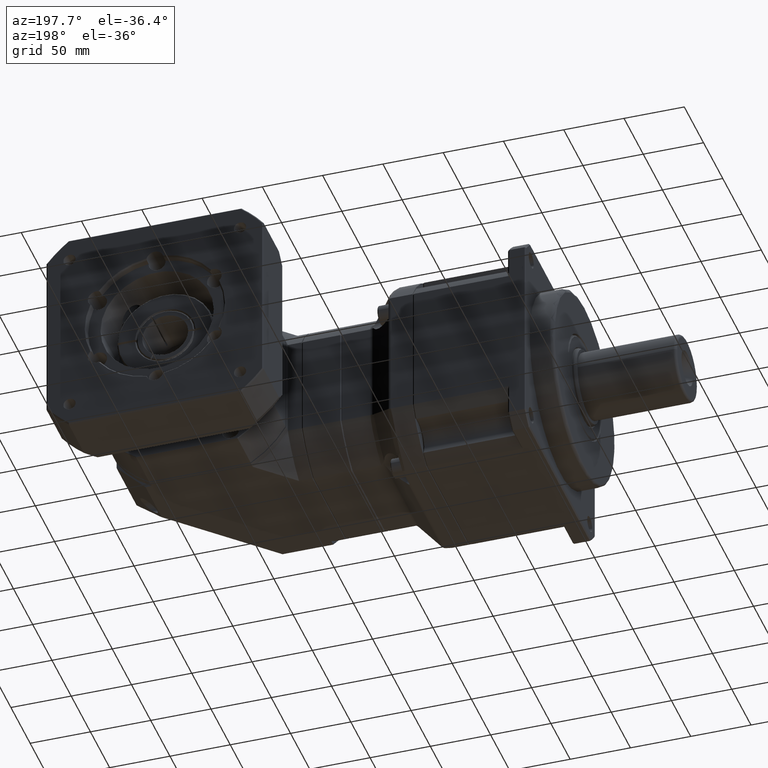
[diagram: clean part render]
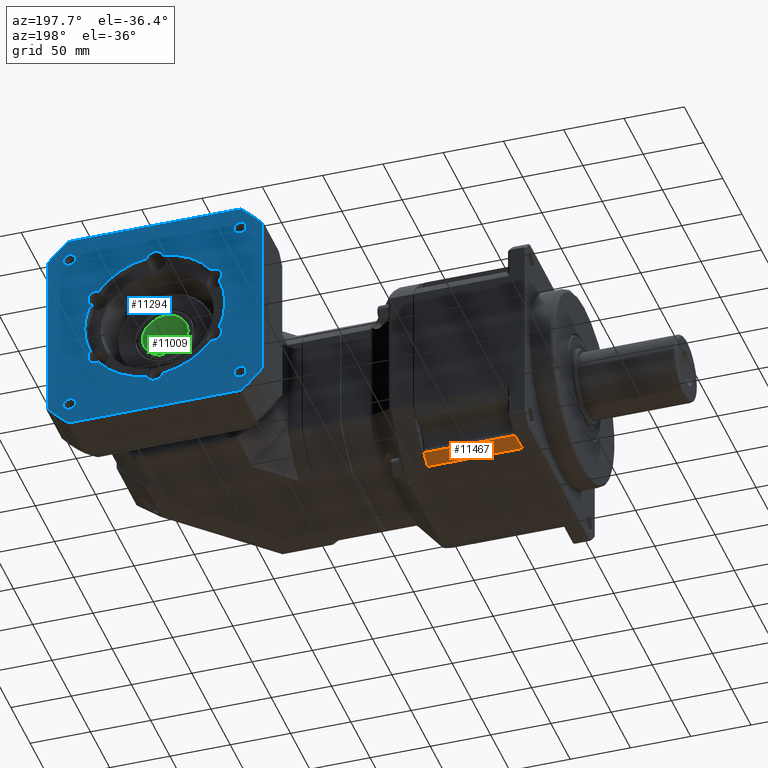
[diagram: same view with three faces highlighted in distinct colors, each labeled with its STEP entity id]
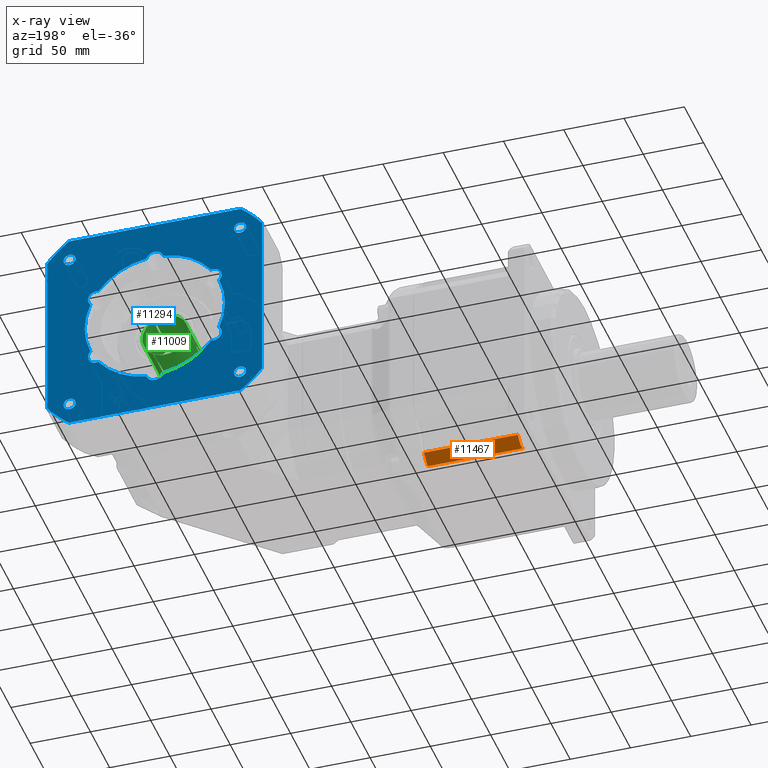
[diagram: x-ray of the same camera — body ghosted, the three highlighted faces saturated]
A machine part, auxiliary view with three faces highlighted in distinct colors.
The next image is the same camera in x-ray (body ghosted, the three faces saturated) — at least one of them is partly hidden behind the body in this view.
Their STEP definitions:

[orange] entity #11467 — the highlighted cylindrical surface (partial cylindrical patch) has radius 105 mm, axis along (-1, 0, -0).
#25=ELLIPSE('',#12682,148.492424049176,105.);
#951=LINE('',#19134,#1501);
#952=LINE('',#19138,#1502);
#1501=VECTOR('',#15325,79.);
#1502=VECTOR('',#15330,78.);
#2884=FACE_OUTER_BOUND('',#3890,.T.);
#3890=EDGE_LOOP('',(#9174,#9175,#9176,#9177,#9178));
#4688=CIRCLE('',#12677,105.);
#4697=CIRCLE('',#12706,105.);
#5505=VERTEX_POINT('',#19046);
#5509=VERTEX_POINT('',#19054);
#5511=VERTEX_POINT('',#19071);
#5524=VERTEX_POINT('',#19132);
#5525=VERTEX_POINT('',#19136);
#6794=EDGE_CURVE('',#5505,#5509,#4688,.T.);
#6799=EDGE_CURVE('',#5505,#5511,#25,.F.);
#6824=EDGE_CURVE('',#5511,#5524,#951,.T.);
#6825=EDGE_CURVE('',#5524,#5525,#4697,.T.);
#6826=EDGE_CURVE('',#5509,#5525,#952,.T.);
#9174=ORIENTED_EDGE('',*,*,#6825,.F.);
#9175=ORIENTED_EDGE('',*,*,#6824,.F.);
#9176=ORIENTED_EDGE('',*,*,#6799,.F.);
#9177=ORIENTED_EDGE('',*,*,#6794,.T.);
#9178=ORIENTED_EDGE('',*,*,#6826,.T.);
#10408=CYLINDRICAL_SURFACE('',#12705,105.);
#11467=ADVANCED_FACE('',(#2884),#10408,.T.);
#12677=AXIS2_PLACEMENT_3D('',#19056,#15258,#15259);
#12682=AXIS2_PLACEMENT_3D('',#19072,#15269,#15270);
#12705=AXIS2_PLACEMENT_3D('',#19135,#15326,#15327);
#12706=AXIS2_PLACEMENT_3D('',#19137,#15328,#15329);
#15258=DIRECTION('center_axis',(1.,-6.24500451351639E-16,1.13043727951383E-16));
#15259=DIRECTION('ref_axis',(-1.13043727951383E-16,-1.41005115693427E-16,
1.));
#15269=DIRECTION('center_axis',(0.707106781186541,-2.02319056410757E-16,
-0.707106781186554));
#15270=DIRECTION('ref_axis',(0.707106781186554,-5.41294177493623E-16,0.707106781186541));
#15325=DIRECTION('',(1.,-6.24500451351639E-16,1.13043727951383E-16));
#15326=DIRECTION('center_axis',(-1.,6.24500451351639E-16,-1.13043727951383E-16));
#15327=DIRECTION('ref_axis',(-1.13043727951383E-16,-1.41005115693427E-16,
1.));
#15328=DIRECTION('center_axis',(1.,-6.24500451351639E-16,1.13043727951383E-16));
#15329=DIRECTION('ref_axis',(1.13043727951383E-16,1.41005115693427E-16,
-1.));
#15330=DIRECTION('',(1.,-6.24500451351639E-16,1.13043727951383E-16));
#19046=CARTESIAN_POINT('',(-35.6553497240733,46.1484213739499,-74.9998135957565));
#19054=CARTESIAN_POINT('',(-35.6553497240733,54.2893420389372,-69.3521151781413));
#19056=CARTESIAN_POINT('Origin',(-35.6553497240734,-9.56513173478657,14.0001864042435));
#19071=CARTESIAN_POINT('',(-36.6553497240733,44.5181373971733,-75.9998135957565));
#19072=CARTESIAN_POINT('Origin',(53.3446502759283,-9.56513173478662,14.0001864042435));
#19132=CARTESIAN_POINT('',(42.3446502759267,44.5181373971732,-75.9998135957565));
#19134=CARTESIAN_POINT('',(43.3446502759267,44.5181373971732,-75.9998135957565));
#19135=CARTESIAN_POINT('Origin',(43.3446502759266,-9.56513173478662,14.0001864042435));
#19136=CARTESIAN_POINT('',(42.3446502759267,54.2893420389371,-69.3521151781413));
#19137=CARTESIAN_POINT('Origin',(42.3446502759266,-9.56513173478662,14.0001864042435));
#19138=CARTESIAN_POINT('',(43.3446502759267,54.2893420389371,-69.3521151781413));

[blue] entity #11294 — the highlighted planar face has unit normal (0, 1, -0).
#799=LINE('',#18074,#1349);
#800=LINE('',#18078,#1350);
#801=LINE('',#18082,#1351);
#802=LINE('',#18085,#1352);
#1349=VECTOR('',#14487,142.47806848775);
#1350=VECTOR('',#14490,142.47806848775);
#1351=VECTOR('',#14493,142.47806848775);
#1352=VECTOR('',#14496,142.47806848775);
#1851=PLANE('',#12360);
#2218=FACE_BOUND('',#3648,.T.);
#2219=FACE_BOUND('',#3649,.T.);
#2220=FACE_BOUND('',#3650,.T.);
#2221=FACE_BOUND('',#3651,.T.);
#2222=FACE_BOUND('',#3652,.T.);
#2711=FACE_OUTER_BOUND('',#3647,.T.);
#3647=EDGE_LOOP('',(#8425,#8426,#8427,#8428,#8429,#8430,#8431,#8432));
#3648=EDGE_LOOP('',(#8433,#8434,#8435,#8436,#8437,#8438,#8439,#8440,#8441,
#8442,#8443,#8444));
#3649=EDGE_LOOP('',(#8445));
#3650=EDGE_LOOP('',(#8446));
#3651=EDGE_LOOP('',(#8447));
#3652=EDGE_LOOP('',(#8448));
#4530=CIRCLE('',#12354,58.15);
#4533=CIRCLE('',#12358,7.);
#4535=CIRCLE('',#12361,114.);
#4536=CIRCLE('',#12362,114.);
#4537=CIRCLE('',#12363,114.);
#4538=CIRCLE('',#12364,114.);
#4539=CIRCLE('',#12365,7.);
#4540=CIRCLE('',#12366,58.15);
#4541=CIRCLE('',#12367,7.);
#4542=CIRCLE('',#12368,58.15);
#4543=CIRCLE('',#12369,7.);
#4544=CIRCLE('',#12370,58.15);
#4545=CIRCLE('',#12371,7.);
#4546=CIRCLE('',#12372,58.15);
#4547=CIRCLE('',#12373,7.);
#4548=CIRCLE('',#12374,58.15);
#4549=CIRCLE('',#12375,5.053);
#4550=CIRCLE('',#12376,5.053);
#4551=CIRCLE('',#12377,5.053);
#4552=CIRCLE('',#12378,5.053);
#5264=VERTEX_POINT('',#18040);
#5266=VERTEX_POINT('',#18046);
#5269=VERTEX_POINT('',#18057);
#5273=VERTEX_POINT('',#18070);
#5274=VERTEX_POINT('',#18071);
#5275=VERTEX_POINT('',#18073);
#5276=VERTEX_POINT('',#18075);
#5277=VERTEX_POINT('',#18077);
#5278=VERTEX_POINT('',#18079);
#5279=VERTEX_POINT('',#18081);
#5280=VERTEX_POINT('',#18083);
#5281=VERTEX_POINT('',#18086);
#5282=VERTEX_POINT('',#18088);
#5283=VERTEX_POINT('',#18090);
#5284=VERTEX_POINT('',#18092);
#5285=VERTEX_POINT('',#18094);
#5286=VERTEX_POINT('',#18096);
#5287=VERTEX_POINT('',#18098);
#5288=VERTEX_POINT('',#18100);
#5289=VERTEX_POINT('',#18102);
#5290=VERTEX_POINT('',#18105);
#5291=VERTEX_POINT('',#18107);
#5292=VERTEX_POINT('',#18109);
#5293=VERTEX_POINT('',#18111);
#6440=EDGE_CURVE('',#5264,#5266,#4530,.T.);
#6444=EDGE_CURVE('',#5269,#5266,#4533,.T.);
#6449=EDGE_CURVE('',#5273,#5274,#4535,.T.);
#6450=EDGE_CURVE('',#5275,#5273,#799,.T.);
#6451=EDGE_CURVE('',#5276,#5275,#4536,.T.);
#6452=EDGE_CURVE('',#5277,#5276,#800,.T.);
#6453=EDGE_CURVE('',#5278,#5277,#4537,.T.);
#6454=EDGE_CURVE('',#5279,#5278,#801,.T.);
#6455=EDGE_CURVE('',#5280,#5279,#4538,.T.);
#6456=EDGE_CURVE('',#5274,#5280,#802,.T.);
#6457=EDGE_CURVE('',#5264,#5281,#4539,.T.);
#6458=EDGE_CURVE('',#5282,#5281,#4540,.T.);
#6459=EDGE_CURVE('',#5282,#5283,#4541,.T.);
#6460=EDGE_CURVE('',#5284,#5283,#4542,.T.);
#6461=EDGE_CURVE('',#5284,#5285,#4543,.T.);
#6462=EDGE_CURVE('',#5286,#5285,#4544,.T.);
#6463=EDGE_CURVE('',#5286,#5287,#4545,.T.);
#6464=EDGE_CURVE('',#5288,#5287,#4546,.T.);
#6465=EDGE_CURVE('',#5288,#5289,#4547,.T.);
#6466=EDGE_CURVE('',#5269,#5289,#4548,.T.);
#6467=EDGE_CURVE('',#5290,#5290,#4549,.T.);
#6468=EDGE_CURVE('',#5291,#5291,#4550,.T.);
#6469=EDGE_CURVE('',#5292,#5292,#4551,.T.);
#6470=EDGE_CURVE('',#5293,#5293,#4552,.T.);
#8425=ORIENTED_EDGE('',*,*,#6449,.F.);
#8426=ORIENTED_EDGE('',*,*,#6450,.F.);
#8427=ORIENTED_EDGE('',*,*,#6451,.F.);
#8428=ORIENTED_EDGE('',*,*,#6452,.F.);
#8429=ORIENTED_EDGE('',*,*,#6453,.F.);
#8430=ORIENTED_EDGE('',*,*,#6454,.F.);
#8431=ORIENTED_EDGE('',*,*,#6455,.F.);
#8432=ORIENTED_EDGE('',*,*,#6456,.F.);
#8433=ORIENTED_EDGE('',*,*,#6440,.F.);
#8434=ORIENTED_EDGE('',*,*,#6457,.T.);
#8435=ORIENTED_EDGE('',*,*,#6458,.F.);
#8436=ORIENTED_EDGE('',*,*,#6459,.T.);
#8437=ORIENTED_EDGE('',*,*,#6460,.F.);
#8438=ORIENTED_EDGE('',*,*,#6461,.T.);
#8439=ORIENTED_EDGE('',*,*,#6462,.F.);
#8440=ORIENTED_EDGE('',*,*,#6463,.T.);
#8441=ORIENTED_EDGE('',*,*,#6464,.F.);
#8442=ORIENTED_EDGE('',*,*,#6465,.T.);
#8443=ORIENTED_EDGE('',*,*,#6466,.F.);
#8444=ORIENTED_EDGE('',*,*,#6444,.T.);
#8445=ORIENTED_EDGE('',*,*,#6467,.T.);
#8446=ORIENTED_EDGE('',*,*,#6468,.T.);
#8447=ORIENTED_EDGE('',*,*,#6469,.T.);
#8448=ORIENTED_EDGE('',*,*,#6470,.T.);
#11294=ADVANCED_FACE('',(#2711,#2218,#2219,#2220,#2221,#2222),#1851,.T.);
#12354=AXIS2_PLACEMENT_3D('',#18047,#14469,#14470);
#12358=AXIS2_PLACEMENT_3D('',#18058,#14477,#14478);
#12360=AXIS2_PLACEMENT_3D('',#18069,#14483,#14484);
#12361=AXIS2_PLACEMENT_3D('',#18072,#14485,#14486);
#12362=AXIS2_PLACEMENT_3D('',#18076,#14488,#14489);
#12363=AXIS2_PLACEMENT_3D('',#18080,#14491,#14492);
#12364=AXIS2_PLACEMENT_3D('',#18084,#14494,#14495);
#12365=AXIS2_PLACEMENT_3D('',#18087,#14497,#14498);
#12366=AXIS2_PLACEMENT_3D('',#18089,#14499,#14500);
#12367=AXIS2_PLACEMENT_3D('',#18091,#14501,#14502);
#12368=AXIS2_PLACEMENT_3D('',#18093,#14503,#14504);
#12369=AXIS2_PLACEMENT_3D('',#18095,#14505,#14506);
#12370=AXIS2_PLACEMENT_3D('',#18097,#14507,#14508);
#12371=AXIS2_PLACEMENT_3D('',#18099,#14509,#14510);
#12372=AXIS2_PLACEMENT_3D('',#18101,#14511,#14512);
#12373=AXIS2_PLACEMENT_3D('',#18103,#14513,#14514);
#12374=AXIS2_PLACEMENT_3D('',#18104,#14515,#14516);
#12375=AXIS2_PLACEMENT_3D('',#18106,#14517,#14518);
#12376=AXIS2_PLACEMENT_3D('',#18108,#14519,#14520);
#12377=AXIS2_PLACEMENT_3D('',#18110,#14521,#14522);
#12378=AXIS2_PLACEMENT_3D('',#18112,#14523,#14524);
#14469=DIRECTION('center_axis',(5.3798615121874E-16,1.,-9.57216014328138E-17));
#14470=DIRECTION('ref_axis',(1.,-5.3798615121874E-16,1.95775935145953E-15));
#14477=DIRECTION('center_axis',(-5.3798615121874E-16,-1.,9.57216014328138E-17));
#14478=DIRECTION('ref_axis',(0.866025403784438,-4.18048873123238E-16,0.500000000000002));
#14483=DIRECTION('center_axis',(5.3798615121874E-16,1.,-9.57216014328138E-17));
#14484=DIRECTION('ref_axis',(-2.8421709430404E-15,0.,1.));
#14485=DIRECTION('center_axis',(-5.3798615121874E-16,-1.,9.57216014328138E-17));
#14486=DIRECTION('ref_axis',(-1.95775935145953E-15,9.57216014328149E-17,
1.));
#14487=DIRECTION('',(-1.,5.3798615121874E-16,-1.76038636930395E-15));
#14488=DIRECTION('center_axis',(-5.3798615121874E-16,-1.,9.57216014328138E-17));
#14489=DIRECTION('ref_axis',(-1.95775935145953E-15,9.57216014328149E-17,
1.));
#14490=DIRECTION('',(-1.56301338714836E-15,9.57216014328146E-17,1.));
#14491=DIRECTION('center_axis',(-5.3798615121874E-16,-1.,9.57216014328138E-17));
#14492=DIRECTION('ref_axis',(1.95775935145953E-15,-9.57216014328148E-17,
-1.));
#14493=DIRECTION('',(1.,-5.3798615121874E-16,1.95775935145953E-15));
#14494=DIRECTION('center_axis',(-5.3798615121874E-16,-1.,9.57216014328138E-17));
#14495=DIRECTION('ref_axis',(1.95775935145953E-15,-9.57216014328149E-17,
-1.));
#14496=DIRECTION('',(1.85907286038174E-15,-9.57216014328148E-17,-1.));
#14497=DIRECTION('center_axis',(-5.3798615121874E-16,-1.,9.57216014328138E-17));
#14498=DIRECTION('ref_axis',(-1.95775935145953E-15,9.57216014328148E-17,
1.));
#14499=DIRECTION('center_axis',(5.3798615121874E-16,1.,-9.57216014328138E-17));
#14500=DIRECTION('ref_axis',(-1.,5.3798615121874E-16,-1.95775935145953E-15));
#14501=DIRECTION('center_axis',(-5.3798615121874E-16,-1.,9.57216014328138E-17));
#14502=DIRECTION('ref_axis',(-0.86602540378444,5.13770474556053E-16,0.499999999999998));
#14503=DIRECTION('center_axis',(5.3798615121874E-16,1.,-9.57216014328138E-17));
#14504=DIRECTION('ref_axis',(-1.,5.3798615121874E-16,-1.95775935145953E-15));
#14505=DIRECTION('center_axis',(-5.3798615121874E-16,-1.,9.57216014328138E-17));
#14506=DIRECTION('ref_axis',(-0.866025403784437,4.18048873123238E-16,-0.500000000000002));
#14507=DIRECTION('center_axis',(5.3798615121874E-16,1.,-9.57216014328138E-17));
#14508=DIRECTION('ref_axis',(-1.,5.3798615121874E-16,-1.95775935145953E-15));
#14509=DIRECTION('center_axis',(-5.3798615121874E-16,-1.,9.57216014328138E-17));
#14510=DIRECTION('ref_axis',(2.1163626406917E-15,-9.57216014328149E-17,
-1.));
#14511=DIRECTION('center_axis',(5.3798615121874E-16,1.,-9.57216014328138E-17));
#14512=DIRECTION('ref_axis',(1.,-5.3798615121874E-16,1.95775935145953E-15));
#14513=DIRECTION('center_axis',(-5.3798615121874E-16,-1.,9.57216014328138E-17));
#14514=DIRECTION('ref_axis',(0.86602540378444,-5.13770474556053E-16,-0.499999999999998));
#14515=DIRECTION('center_axis',(5.3798615121874E-16,1.,-9.57216014328138E-17));
#14516=DIRECTION('ref_axis',(1.,-5.3798615121874E-16,1.95775935145953E-15));
#14517=DIRECTION('center_axis',(-5.3798615121874E-16,-1.,9.57216014328138E-17));
#14518=DIRECTION('ref_axis',(-1.95775935145953E-15,9.57216014328148E-17,
1.));
#14519=DIRECTION('center_axis',(-5.3798615121874E-16,-1.,9.57216014328138E-17));
#14520=DIRECTION('ref_axis',(1.,-5.3798615121874E-16,2.0189916914169E-15));
#14521=DIRECTION('center_axis',(-5.3798615121874E-16,-1.,9.57216014328138E-17));
#14522=DIRECTION('ref_axis',(2.08022403137427E-15,-9.57216014328149E-17,
-1.));
#14523=DIRECTION('center_axis',(-5.3798615121874E-16,-1.,9.57216014328138E-17));
#14524=DIRECTION('ref_axis',(-1.,5.3798615121874E-16,-2.14145637133163E-15));
#18040=CARTESIAN_POINT('',(230.621396002645,184.734868265213,71.7539587256722));
#18046=CARTESIAN_POINT('',(270.472511407308,184.734868265213,48.7459065192835));
#18047=CARTESIAN_POINT('Origin',(223.844650275927,184.734868265213,14.0001864042436));
#18057=CARTESIAN_POINT('',(277.249257134026,184.734868265213,37.0082386106326));
#18058=CARTESIAN_POINT('Origin',(272.342072887855,184.734868265213,42.0001864042437));
#18069=CARTESIAN_POINT('Origin',(223.844650275927,184.734868265213,14.0001864042436));
#18070=CARTESIAN_POINT('',(152.605616032052,184.734868265213,103.000186404243));
#18071=CARTESIAN_POINT('',(134.844650275927,184.734868265213,85.2392206481185));
#18072=CARTESIAN_POINT('Origin',(223.844650275927,184.734868265213,14.0001864042436));
#18073=CARTESIAN_POINT('',(295.083684519802,184.734868265213,103.000186404244));
#18074=CARTESIAN_POINT('',(268.844650275927,184.734868265213,103.000186404244));
#18075=CARTESIAN_POINT('',(312.844650275927,184.734868265213,85.2392206481188));
#18076=CARTESIAN_POINT('Origin',(223.844650275927,184.734868265213,14.0001864042436));
#18077=CARTESIAN_POINT('',(312.844650275927,184.734868265213,-57.2388478396313));
#18078=CARTESIAN_POINT('',(312.844650275927,184.734868265213,-30.9998135957562));
#18079=CARTESIAN_POINT('',(295.083684519802,184.734868265213,-74.9998135957562));
#18080=CARTESIAN_POINT('Origin',(223.844650275927,184.734868265213,14.0001864042436));
#18081=CARTESIAN_POINT('',(152.605616032052,184.734868265213,-74.9998135957565));
#18082=CARTESIAN_POINT('',(178.844650275927,184.734868265213,-74.9998135957565));
#18083=CARTESIAN_POINT('',(134.844650275927,184.734868265213,-57.2388478396316));
#18084=CARTESIAN_POINT('Origin',(223.844650275927,184.734868265213,14.0001864042436));
#18085=CARTESIAN_POINT('',(134.844650275927,184.734868265213,59.0001864042435));
#18086=CARTESIAN_POINT('',(217.067904549209,184.734868265213,71.7539587256722));
#18087=CARTESIAN_POINT('Origin',(223.844650275927,184.734868265213,70.0001864042436));
#18088=CARTESIAN_POINT('',(177.216789144546,184.734868265213,48.7459065192832));
#18089=CARTESIAN_POINT('Origin',(223.844650275927,184.734868265213,14.0001864042436));
#18090=CARTESIAN_POINT('',(170.440043417828,184.734868265213,37.0082386106323));
#18091=CARTESIAN_POINT('Origin',(175.347227663998,184.734868265213,42.0001864042435));
#18092=CARTESIAN_POINT('',(170.440043417828,184.734868265213,-9.00786580214532));
#18093=CARTESIAN_POINT('Origin',(223.844650275927,184.734868265213,14.0001864042436));
#18094=CARTESIAN_POINT('',(177.216789144546,184.734868265213,-20.7455337107962));
#18095=CARTESIAN_POINT('Origin',(175.347227663998,184.734868265213,-13.9998135957565));
#18096=CARTESIAN_POINT('',(217.067904549209,184.734868265213,-43.7535859171849));
#18097=CARTESIAN_POINT('Origin',(223.844650275927,184.734868265213,14.0001864042436));
#18098=CARTESIAN_POINT('',(230.621396002645,184.734868265213,-43.7535859171849));
#18099=CARTESIAN_POINT('Origin',(223.844650275927,184.734868265213,-41.9998135957564));
#18100=CARTESIAN_POINT('',(270.472511407308,184.734868265213,-20.745533710796));
#18101=CARTESIAN_POINT('Origin',(223.844650275927,184.734868265213,14.0001864042436));
#18102=CARTESIAN_POINT('',(277.249257134026,184.734868265213,-9.00786580214507));
#18103=CARTESIAN_POINT('Origin',(272.342072887856,184.734868265213,-13.9998135957562));
#18104=CARTESIAN_POINT('Origin',(223.844650275927,184.734868265213,14.0001864042436));
#18105=CARTESIAN_POINT('',(153.133972157272,184.734868265213,-51.6574917144112));
#18106=CARTESIAN_POINT('Origin',(153.133972157272,184.734868265213,-56.7104917144112));
#18107=CARTESIAN_POINT('',(158.186972157272,184.734868265213,84.7108645228983));
#18108=CARTESIAN_POINT('Origin',(153.133972157272,184.734868265213,84.7108645228983));
#18109=CARTESIAN_POINT('',(294.555328394582,184.734868265213,79.6578645228985));
#18110=CARTESIAN_POINT('Origin',(294.555328394582,184.734868265213,84.7108645228985));
#18111=CARTESIAN_POINT('',(289.502328394582,184.734868265213,-56.710491714411));
#18112=CARTESIAN_POINT('Origin',(294.555328394582,184.734868265213,-56.710491714411));

[green] entity #11009 — the highlighted cylindrical surface (bore or boss wall) has radius 19 mm, axis along (0, 1, 0).
#614=LINE('',#16475,#1164);
#621=LINE('',#16489,#1171);
#626=LINE('',#16504,#1176);
#633=LINE('',#16518,#1183);
#643=LINE('',#16566,#1193);
#645=LINE('',#16571,#1195);
#1164=VECTOR('',#13218,35.);
#1171=VECTOR('',#13227,35.);
#1176=VECTOR('',#13240,35.);
#1183=VECTOR('',#13249,35.);
#1193=VECTOR('',#13303,35.);
#1195=VECTOR('',#13307,35.);
#2067=FACE_BOUND('',#3212,.T.);
#2426=FACE_OUTER_BOUND('',#3211,.T.);
#3211=EDGE_LOOP('',(#7501,#7502,#7503,#7504,#7505,#7506,#7507,#7508,#7509,
#7510,#7511,#7512));
#3212=EDGE_LOOP('',(#7513));
#4293=CIRCLE('',#11818,19.);
#4295=CIRCLE('',#11823,19.);
#4310=CIRCLE('',#11844,19.);
#4311=CIRCLE('',#11846,19.);
#4312=CIRCLE('',#11850,19.);
#4314=CIRCLE('',#11853,19.);
#4316=CIRCLE('',#11857,19.);
#4874=VERTEX_POINT('',#16466);
#4875=VERTEX_POINT('',#16468);
#4877=VERTEX_POINT('',#16474);
#4883=VERTEX_POINT('',#16487);
#4886=VERTEX_POINT('',#16495);
#4887=VERTEX_POINT('',#16497);
#4889=VERTEX_POINT('',#16503);
#4895=VERTEX_POINT('',#16516);
#4910=VERTEX_POINT('',#16559);
#4911=VERTEX_POINT('',#16565);
#4912=VERTEX_POINT('',#16569);
#4913=VERTEX_POINT('',#16570);
#4915=VERTEX_POINT('',#16584);
#5925=EDGE_CURVE('',#4875,#4874,#4293,.T.);
#5928=EDGE_CURVE('',#4877,#4875,#614,.T.);
#5935=EDGE_CURVE('',#4874,#4883,#621,.T.);
#5939=EDGE_CURVE('',#4887,#4886,#4295,.T.);
#5942=EDGE_CURVE('',#4889,#4887,#626,.T.);
#5949=EDGE_CURVE('',#4886,#4895,#633,.T.);
#5972=EDGE_CURVE('',#4910,#4889,#4310,.T.);
#5974=EDGE_CURVE('',#4895,#4877,#4311,.T.);
#5975=EDGE_CURVE('',#4911,#4910,#643,.T.);
#5977=EDGE_CURVE('',#4912,#4913,#645,.T.);
#5981=EDGE_CURVE('',#4913,#4911,#4312,.T.);
#5983=EDGE_CURVE('',#4883,#4912,#4314,.T.);
#5985=EDGE_CURVE('',#4915,#4915,#4316,.T.);
#7501=ORIENTED_EDGE('',*,*,#5935,.T.);
#7502=ORIENTED_EDGE('',*,*,#5983,.T.);
#7503=ORIENTED_EDGE('',*,*,#5977,.T.);
#7504=ORIENTED_EDGE('',*,*,#5981,.T.);
#7505=ORIENTED_EDGE('',*,*,#5975,.T.);
#7506=ORIENTED_EDGE('',*,*,#5972,.T.);
#7507=ORIENTED_EDGE('',*,*,#5942,.T.);
#7508=ORIENTED_EDGE('',*,*,#5939,.T.);
#7509=ORIENTED_EDGE('',*,*,#5949,.T.);
#7510=ORIENTED_EDGE('',*,*,#5974,.T.);
#7511=ORIENTED_EDGE('',*,*,#5928,.T.);
#7512=ORIENTED_EDGE('',*,*,#5925,.T.);
#7513=ORIENTED_EDGE('',*,*,#5985,.F.);
#10266=CYLINDRICAL_SURFACE('',#11856,19.);
#11009=ADVANCED_FACE('',(#2426,#2067),#10266,.F.);
#11818=AXIS2_PLACEMENT_3D('',#16469,#13212,#13213);
#11823=AXIS2_PLACEMENT_3D('',#16498,#13234,#13235);
#11844=AXIS2_PLACEMENT_3D('',#16560,#13294,#13295);
#11846=AXIS2_PLACEMENT_3D('',#16563,#13299,#13300);
#11850=AXIS2_PLACEMENT_3D('',#16577,#13313,#13314);
#11853=AXIS2_PLACEMENT_3D('',#16580,#13319,#13320);
#11856=AXIS2_PLACEMENT_3D('',#16583,#13325,#13326);
#11857=AXIS2_PLACEMENT_3D('',#16585,#13327,#13328);
#13212=DIRECTION('center_axis',(5.58758504397033E-16,1.,2.38852164241852E-16));
#13213=DIRECTION('ref_axis',(-1.,5.24394458396731E-16,9.57216014328139E-17));
#13218=DIRECTION('',(-5.02692674881232E-16,-1.,-2.9837243786801E-16));
#13227=DIRECTION('',(5.02692674881232E-16,1.,2.9837243786801E-16));
#13234=DIRECTION('center_axis',(5.58758504397033E-16,1.,3.57892711494168E-16));
#13235=DIRECTION('ref_axis',(-1.,5.24394458396731E-16,9.57216014328139E-17));
#13240=DIRECTION('',(-5.02692674881232E-16,-1.,-2.9837243786801E-16));
#13249=DIRECTION('',(5.02692674881232E-16,1.,2.9837243786801E-16));
#13294=DIRECTION('center_axis',(5.02692674881232E-16,1.,2.9837243786801E-16));
#13295=DIRECTION('ref_axis',(-9.57216014328137E-17,2.9837243786801E-16,
-1.));
#13299=DIRECTION('center_axis',(5.02692674881232E-16,1.,2.9837243786801E-16));
#13300=DIRECTION('ref_axis',(-9.57216014328137E-17,2.9837243786801E-16,
-1.));
#13303=DIRECTION('',(5.02692674881232E-16,1.,2.9837243786801E-16));
#13307=DIRECTION('',(-5.02692674881232E-16,-1.,-2.9837243786801E-16));
#13313=DIRECTION('center_axis',(4.55666366396126E-16,1.,2.9837243786801E-16));
#13314=DIRECTION('ref_axis',(-1.,5.24394458396731E-16,9.57216014328139E-17));
#13319=DIRECTION('center_axis',(5.02692674881232E-16,1.,2.9837243786801E-16));
#13320=DIRECTION('ref_axis',(-9.57216014328137E-17,2.9837243786801E-16,
-1.));
#13325=DIRECTION('center_axis',(5.02692674881232E-16,1.,2.9837243786801E-16));
#13326=DIRECTION('ref_axis',(-1.,5.24394458396731E-16,9.57216014328139E-17));
#13327=DIRECTION('center_axis',(5.02692674881232E-16,1.,2.9837243786801E-16));
#13328=DIRECTION('ref_axis',(-9.57216014328137E-17,2.9837243786801E-16,
-1.));
#16466=CARTESIAN_POINT('',(232.820297010032,122.734868265213,-2.74608977001538));
#16468=CARTESIAN_POINT('',(233.859527494573,122.734868265213,-2.14608977001538));
#16469=CARTESIAN_POINT('Origin',(223.844650275927,122.734868265213,14.0001864042436));
#16474=CARTESIAN_POINT('',(233.859527494573,157.734868265213,-2.14608977001537));
#16475=CARTESIAN_POINT('',(233.859527494573,137.734868265213,-2.14608977001537));
#16487=CARTESIAN_POINT('',(232.820297010032,157.734868265213,-2.74608977001537));
#16489=CARTESIAN_POINT('',(232.820297010032,137.734868265213,-2.74608977001538));
#16495=CARTESIAN_POINT('',(233.859527494573,122.734868265213,30.1464625785027));
#16497=CARTESIAN_POINT('',(232.820297010032,122.734868265213,30.7464625785027));
#16498=CARTESIAN_POINT('Origin',(223.844650275927,122.734868265213,14.0001864042436));
#16503=CARTESIAN_POINT('',(232.820297010032,157.734868265213,30.7464625785027));
#16504=CARTESIAN_POINT('',(232.820297010032,137.734868265213,30.7464625785027));
#16516=CARTESIAN_POINT('',(233.859527494573,157.734868265213,30.1464625785027));
#16518=CARTESIAN_POINT('',(233.859527494573,137.734868265213,30.1464625785027));
#16559=CARTESIAN_POINT('',(204.854126323176,157.734868265213,14.6001864042437));
#16560=CARTESIAN_POINT('Origin',(223.844650275927,157.734868265213,14.0001864042437));
#16563=CARTESIAN_POINT('Origin',(223.844650275927,157.734868265213,14.0001864042437));
#16565=CARTESIAN_POINT('',(204.854126323176,122.734868265213,14.6001864042436));
#16566=CARTESIAN_POINT('',(204.854126323176,137.734868265213,14.6001864042436));
#16569=CARTESIAN_POINT('',(204.854126323176,157.734868265213,13.4001864042437));
#16570=CARTESIAN_POINT('',(204.854126323176,122.734868265213,13.4001864042436));
#16571=CARTESIAN_POINT('',(204.854126323176,137.734868265213,13.4001864042436));
#16577=CARTESIAN_POINT('Origin',(223.844650275927,122.734868265213,14.0001864042436));
#16580=CARTESIAN_POINT('Origin',(223.844650275927,157.734868265213,14.0001864042437));
#16583=CARTESIAN_POINT('Origin',(223.844650275927,137.734868265213,14.0001864042436));
#16584=CARTESIAN_POINT('',(204.844650275927,117.734868265213,14.0001864042436));
#16585=CARTESIAN_POINT('Origin',(223.844650275927,117.734868265213,14.0001864042436));